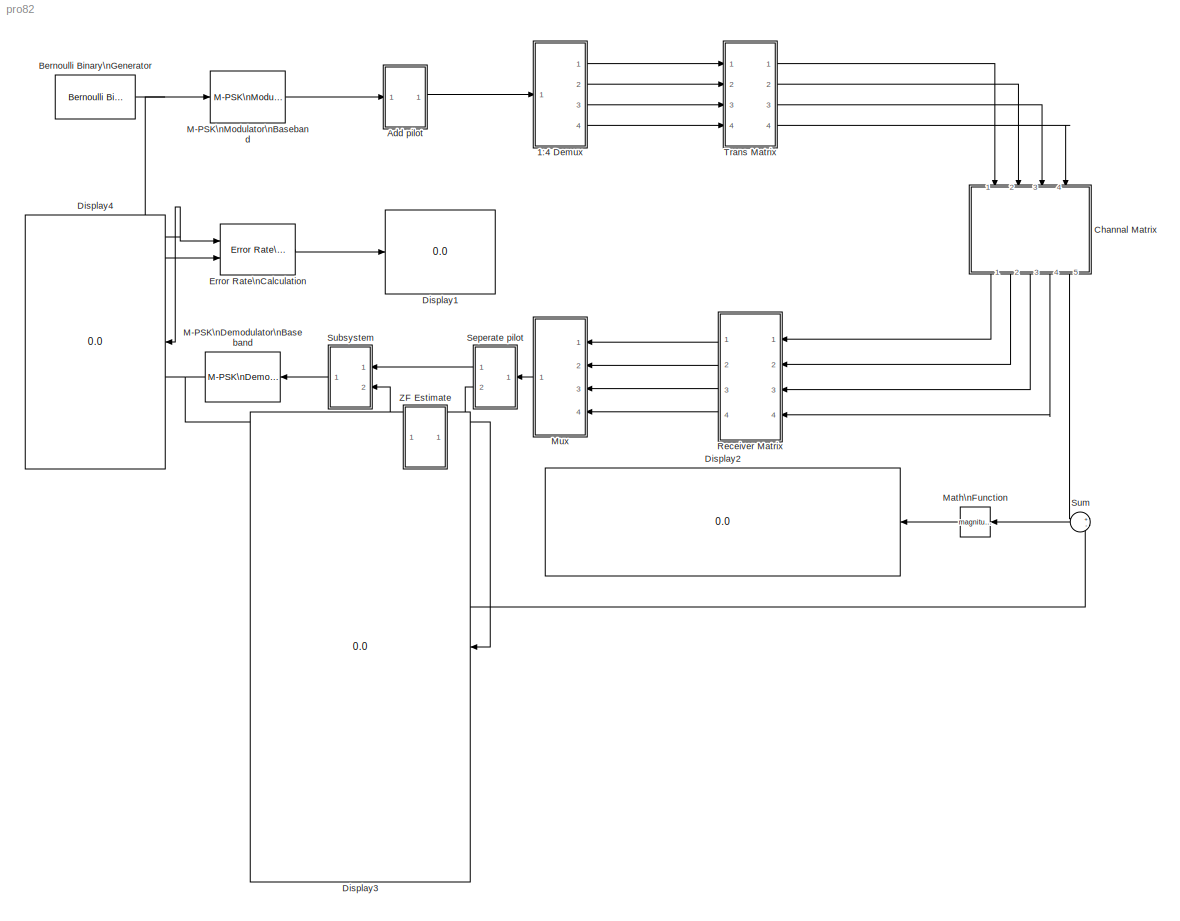
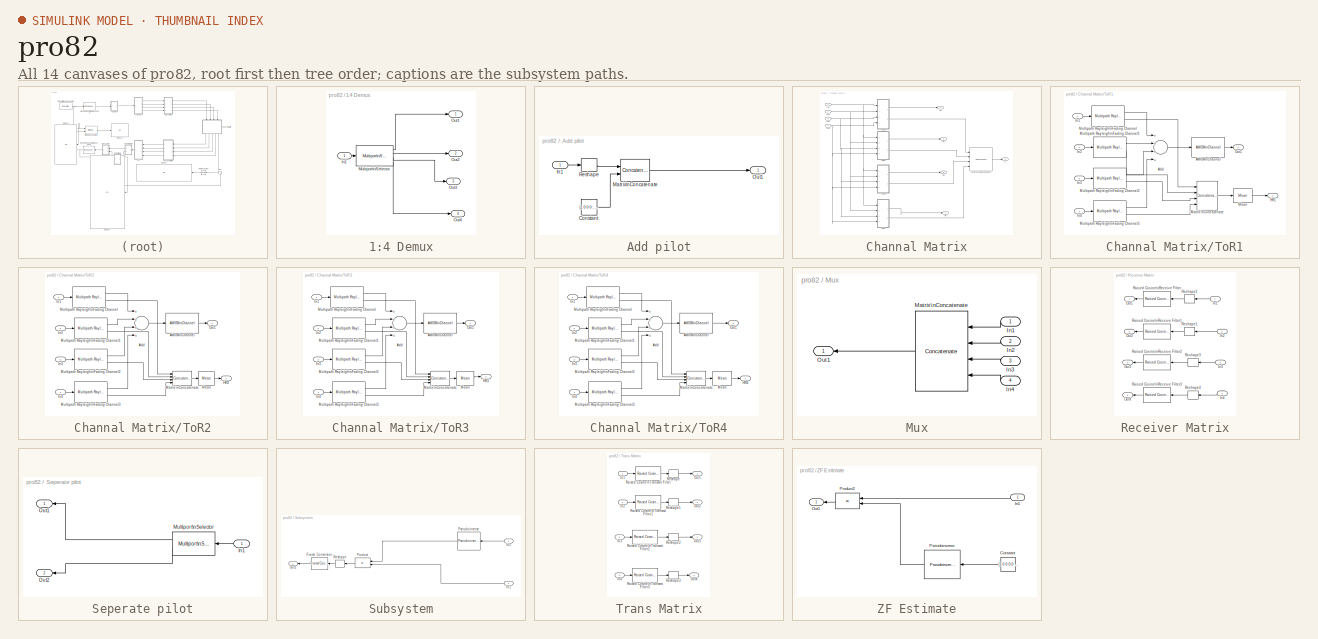
[diagram: thumbnail index - all 14 canvases of the model, root first then tree order]
MODEL pro82
KIND model
BLOCK [SubSystem] 1:4 Demux
  FunctionWithSeparateData = off
  MaskHideContents = off
  MinAlgLoopOccurrences = off
  Opaque = off
  Ports = [1, 4]
  PropExecContextOutsideSubsystem = off
  RTWSystemCode = Auto
  RequestExecContextInheritance = off
  SID = 1
BLOCK [Inport] 1:4 Demux/In1
  IconDisplay = Port number
  SID = 2
BLOCK [Reference] 1:4 Demux/Multiport\nSelector  REF=dspindex/Multiport\nSelector
  Ports = [1, 4]
  SID = 3
  SourceBlock = dspindex/Multiport\nSelector
  SourceType = Multiport Selector
  idxCellArray = { 1, 2, 3, 4 }
  idxErrMode = Clip Index
  rowsOrCols = Rows
BLOCK [Outport] 1:4 Demux/Out1
  IconDisplay = Port number
  SID = 4
BLOCK [Outport] 1:4 Demux/Out2
  IconDisplay = Port number
  Port = 2
  SID = 5
BLOCK [Outport] 1:4 Demux/Out3
  IconDisplay = Port number
  Port = 3
  SID = 6
BLOCK [Outport] 1:4 Demux/Out4
  IconDisplay = Port number
  Port = 4
  SID = 7
BLOCK [SubSystem] Add pilot
  FunctionWithSeparateData = off
  MaskHideContents = off
  MinAlgLoopOccurrences = off
  Opaque = off
  Ports = [1, 1]
  PropExecContextOutsideSubsystem = off
  RTWSystemCode = Auto
  RequestExecContextInheritance = off
  SID = 8
BLOCK [Constant] Add pilot/Constant
  OutDataType = fixdt(1, 16)
  OutScaling = 2^0
  SID = 10
  SampleTime = 1e-4
  Value = [1 0 0 0 ; 0 1 0 0;0 0 1 0; 0 0 0 1]
BLOCK [Inport] Add pilot/In1
  IconDisplay = Port number
  SID = 9
BLOCK [Concatenate] Add pilot/Matrix\nConcatenate
  ConcatenateDimension = 2
  Mode = Multidimensional array
  Ports = [2, 1]
  SID = 11
BLOCK [Outport] Add pilot/Out1
  IconDisplay = Port number
  SID = 13
BLOCK [Reshape] Add pilot/Reshape
  OutputDimensionality = Customize
  OutputDimensions = [4,96]
  Ports = [1, 1]
  SID = 12
BLOCK [Reference] Bernoulli Binary\nGenerator  REF=commrandsrc2/Bernoulli Binary\nGenerator
  DialogController = commDDGCreate
  DialogControllerArgs = DataTag0
  FunctionWithSeparateData = off
  P = 0.5
  Ports = [0, 1]
  RTWMemSecDataConstants = Inherit from model
  RTWMemSecDataInternal = Inherit from model
  RTWMemSecDataParameters = Inherit from model
  RTWMemSecFuncExecute = Inherit from model
  RTWMemSecFuncInitTerm = Inherit from model
  SID = 14
  ShowPortLabels = FromPortIcon
  SourceBlock = commrandsrc2/Bernoulli Binary\nGenerator
  SourceType = Bernoulli Binary Generator
  SystemSampleTime = -1
  Ts = 1e-4/(4*4*96)
  frameBased = on
  orient = off
  outDataType = boolean
  sampPerFrame = 4*4*96
  seed = 61
BLOCK [SubSystem] Channal Matrix
  FunctionWithSeparateData = off
  MaskHideContents = off
  MinAlgLoopOccurrences = off
  Opaque = off
  Ports = [4, 5]
  PropExecContextOutsideSubsystem = off
  RTWSystemCode = Auto
  RequestExecContextInheritance = off
  SID = 15
BLOCK [Outport] Channal Matrix/H
  IconDisplay = Port number
  Port = 5
  SID = 85
BLOCK [Inport] Channal Matrix/In1
  IconDisplay = Port number
  SID = 16
BLOCK [Inport] Channal Matrix/In2
  IconDisplay = Port number
  Port = 2
  SID = 17
BLOCK [Inport] Channal Matrix/In3
  IconDisplay = Port number
  Port = 3
  SID = 18
BLOCK [Inport] Channal Matrix/In4
  IconDisplay = Port number
  Port = 4
  SID = 19
BLOCK [Concatenate] Channal Matrix/Matrix\nConcatenate
  Mode = Multidimensional array
  NumInputs = 4
  Ports = [4, 1]
  SID = 20
BLOCK [Outport] Channal Matrix/R1
  IconDisplay = Port number
  SID = 81
BLOCK [Outport] Channal Matrix/R2
  IconDisplay = Port number
  Port = 2
  SID = 82
BLOCK [Outport] Channal Matrix/R3
  IconDisplay = Port number
  Port = 3
  SID = 83
BLOCK [Outport] Channal Matrix/R4
  IconDisplay = Port number
  Port = 4
  SID = 84
BLOCK [SubSystem] Channal Matrix/ToR1
  FunctionWithSeparateData = off
  MaskHideContents = off
  MinAlgLoopOccurrences = off
  Opaque = off
  Ports = [4, 2]
  PropExecContextOutsideSubsystem = off
  RTWSystemCode = Auto
  RequestExecContextInheritance = off
  SID = 21
BLOCK [Reference] Channal Matrix/ToR1/AWGN\nChannel  REF=commchan3/AWGN\nChannel
  EbNodB = 10
  EsNodB = 10
  FunctionWithSeparateData = off
  Ports = [1, 1]
  Ps = 0.25/8
  RTWMemSecDataConstants = Inherit from model
  RTWMemSecDataInternal = Inherit from model
  RTWMemSecDataParameters = Inherit from model
  RTWMemSecFuncExecute = Inherit from model
  RTWMemSecFuncInitTerm = Inherit from model
  SID = 26
  SNRdB = 10
  ShowPortLabels = FromPortIcon
  SourceBlock = commchan3/AWGN\nChannel
  SourceType = AWGN Channel
  SystemSampleTime = -1
  Tsym = 1e-6
  bitsPerSym = 4
  noiseMode = Signal to noise ratio  (SNR)
  seed = 73
  variance = 1
BLOCK [Sum] Channal Matrix/ToR1/Add
  InputSameDT = off
  Inputs = ++++
  OutDataType = fixdt(1, 16)
  OutDataTypeMode = Inherit via internal rule
  OutDataTypeStr = Inherit: Inherit via internal rule
  OutScaling = 2^-10
  Ports = [4, 1]
  SID = 27
  SaturateOnIntegerOverflow = off
BLOCK [Outport] Channal Matrix/ToR1/HR1
  IconDisplay = Port number
  Port = 2
  SID = 35
BLOCK [Inport] Channal Matrix/ToR1/In1
  IconDisplay = Port number
  SID = 22
BLOCK [Inport] Channal Matrix/ToR1/In2
  IconDisplay = Port number
  Port = 2
  SID = 23
BLOCK [Inport] Channal Matrix/ToR1/In3
  IconDisplay = Port number
  Port = 3
  SID = 24
BLOCK [Inport] Channal Matrix/ToR1/In4
  IconDisplay = Port number
  Port = 4
  SID = 25
BLOCK [Concatenate] Channal Matrix/ToR1/Matrix\nConcatenate
  ConcatenateDimension = 2
  Mode = Multidimensional array
  NumInputs = 4
  Ports = [4, 1]
  SID = 28
BLOCK [Reference] Channal Matrix/ToR1/Mean  REF=dspstat3/Mean
  DialogController = dspDDGCreate
  DialogControllerArgs = DataTag1
  LockScale = off
  Ports = [1, 1]
  SID = 29
  SourceBlock = dspstat3/Mean
  SourceType = Mean
  accumDataTypeStr = Inherit: Same as input
  accumFracLength = 30
  accumLastDataTypeStr = Inherit: Same as input
  accumMode = Same as input
  accumWordLength = 32
  additionalParams = off
  allowOverrides = on
  dimension = 1
  directionMode = Each column
  outputDataTypeStr = Inherit: Same as accumulator
  outputFracLength = 30
  outputLastDataTypeStr = Inherit: Same as accumulator
  outputMax = []
  outputMin = []
  outputMode = Same as accumulator
  outputWordLength = 32
  overflowMode = off
  reset_popup = None
  roiEnable = off
  roiFlag = off
  roiOutput = Individual statistics for each ROI
  roiPortion = Entire ROI
  roiType = Rectangles
  roundingMode = Floor
  run = off
  treatSBRowAsCol = on
BLOCK [Reference] Channal Matrix/ToR1/Multipath Rayleigh\nFading Channel  REF=commchan3/Multipath Rayleigh\nFading Channel
  FunctionWithSeparateData = off
  Ports = [1, 2]
  RTWMemSecDataConstants = Inherit from model
  RTWMemSecDataInternal = Inherit from model
  RTWMemSecDataParameters = Inherit from model
  RTWMemSecFuncExecute = Inherit from model
  RTWMemSecFuncInitTerm = Inherit from model
  SID = 30
  ShowPortLabels = FromPortIcon
  SourceBlock = commchan3/Multipath Rayleigh\nFading Channel
  SourceType = Multipath Rayleigh Fading Channel
  SystemSampleTime = -1
  avgPathGaindB = [0]
  centerFreqGaussian1 = 0.0
  centerFreqGaussian2 = 0.0
  coeffBell = 9
  coeffRounded = [1 -1.72 0.785]
  dopplerSpectrum = doppler.jakes
  enableProbe = 0
  freqMinMaxAJakes = [0 1]
  freqMinMaxRJakes = [0 1]
  gainGaussian1 = 0.5
  gainGaussian2 = 0.5
  maxDopplerShift = 40
  normalizePathGains = on
  openVisAtStart = off
  outDelay = off
  outPathGains = on
  pathDelays = [0]
  seed = 12345
  sigmaGaussian = 1/sqrt(2)
  sigmaGaussian1 = 1/sqrt(2)
  sigmaGaussian2 = 1/sqrt(2)
  spectrumType = Jakes
BLOCK [Reference] Channal Matrix/ToR1/Multipath Rayleigh\nFading Channel1  REF=commchan3/Multipath Rayleigh\nFading Channel
  FunctionWithSeparateData = off
  Ports = [1, 2]
  RTWMemSecDataConstants = Inherit from model
  RTWMemSecDataInternal = Inherit from model
  RTWMemSecDataParameters = Inherit from model
  RTWMemSecFuncExecute = Inherit from model
  RTWMemSecFuncInitTerm = Inherit from model
  SID = 31
  ShowPortLabels = FromPortIcon
  SourceBlock = commchan3/Multipath Rayleigh\nFading Channel
  SourceType = Multipath Rayleigh Fading Channel
  SystemSampleTime = -1
  avgPathGaindB = [0]
  centerFreqGaussian1 = 0.0
  centerFreqGaussian2 = 0.0
  coeffBell = 9
  coeffRounded = [1 -1.72 0.785]
  dopplerSpectrum = doppler.jakes
  enableProbe = 0
  freqMinMaxAJakes = [0 1]
  freqMinMaxRJakes = [0 1]
  gainGaussian1 = 0.5
  gainGaussian2 = 0.5
  maxDopplerShift = 40
  normalizePathGains = on
  openVisAtStart = off
  outDelay = off
  outPathGains = on
  pathDelays = [0]
  seed = 15678
  sigmaGaussian = 1/sqrt(2)
  sigmaGaussian1 = 1/sqrt(2)
  sigmaGaussian2 = 1/sqrt(2)
  spectrumType = Jakes
BLOCK [Reference] Channal Matrix/ToR1/Multipath Rayleigh\nFading Channel2  REF=commchan3/Multipath Rayleigh\nFading Channel
  FunctionWithSeparateData = off
  Ports = [1, 2]
  RTWMemSecDataConstants = Inherit from model
  RTWMemSecDataInternal = Inherit from model
  RTWMemSecDataParameters = Inherit from model
  RTWMemSecFuncExecute = Inherit from model
  RTWMemSecFuncInitTerm = Inherit from model
  SID = 32
  ShowPortLabels = FromPortIcon
  SourceBlock = commchan3/Multipath Rayleigh\nFading Channel
  SourceType = Multipath Rayleigh Fading Channel
  SystemSampleTime = -1
  avgPathGaindB = [0]
  centerFreqGaussian1 = 0.0
  centerFreqGaussian2 = 0.0
  coeffBell = 9
  coeffRounded = [1 -1.72 0.785]
  dopplerSpectrum = doppler.jakes
  enableProbe = 0
  freqMinMaxAJakes = [0 1]
  freqMinMaxRJakes = [0 1]
  gainGaussian1 = 0.5
  gainGaussian2 = 0.5
  maxDopplerShift = 40
  normalizePathGains = on
  openVisAtStart = off
  outDelay = off
  outPathGains = on
  pathDelays = [0]
  seed = 13987
  sigmaGaussian = 1/sqrt(2)
  sigmaGaussian1 = 1/sqrt(2)
  sigmaGaussian2 = 1/sqrt(2)
  spectrumType = Jakes
BLOCK [Reference] Channal Matrix/ToR1/Multipath Rayleigh\nFading Channel3  REF=commchan3/Multipath Rayleigh\nFading Channel
  FunctionWithSeparateData = off
  Ports = [1, 2]
  RTWMemSecDataConstants = Inherit from model
  RTWMemSecDataInternal = Inherit from model
  RTWMemSecDataParameters = Inherit from model
  RTWMemSecFuncExecute = Inherit from model
  RTWMemSecFuncInitTerm = Inherit from model
  SID = 33
  ShowPortLabels = FromPortIcon
  SourceBlock = commchan3/Multipath Rayleigh\nFading Channel
  SourceType = Multipath Rayleigh Fading Channel
  SystemSampleTime = -1
  avgPathGaindB = [0]
  centerFreqGaussian1 = 0.0
  centerFreqGaussian2 = 0.0
  coeffBell = 9
  coeffRounded = [1 -1.72 0.785]
  dopplerSpectrum = doppler.jakes
  enableProbe = 0
  freqMinMaxAJakes = [0 1]
  freqMinMaxRJakes = [0 1]
  gainGaussian1 = 0.5
  gainGaussian2 = 0.5
  maxDopplerShift = 40
  normalizePathGains = on
  openVisAtStart = off
  outDelay = off
  outPathGains = on
  pathDelays = [0]
  seed = 19876
  sigmaGaussian = 1/sqrt(2)
  sigmaGaussian1 = 1/sqrt(2)
  sigmaGaussian2 = 1/sqrt(2)
  spectrumType = Jakes
BLOCK [Outport] Channal Matrix/ToR1/Out1
  IconDisplay = Port number
  SID = 34
BLOCK [SubSystem] Channal Matrix/ToR2
  FunctionWithSeparateData = off
  MaskHideContents = off
  MinAlgLoopOccurrences = off
  Opaque = off
  Ports = [4, 2]
  PropExecContextOutsideSubsystem = off
  RTWSystemCode = Auto
  RequestExecContextInheritance = off
  SID = 36
BLOCK [Reference] Channal Matrix/ToR2/AWGN\nChannel  REF=commchan3/AWGN\nChannel
  EbNodB = 10
  EsNodB = 10
  FunctionWithSeparateData = off
  Ports = [1, 1]
  Ps = 0.25/8
  RTWMemSecDataConstants = Inherit from model
  RTWMemSecDataInternal = Inherit from model
  RTWMemSecDataParameters = Inherit from model
  RTWMemSecFuncExecute = Inherit from model
  RTWMemSecFuncInitTerm = Inherit from model
  SID = 41
  SNRdB = 10
  ShowPortLabels = FromPortIcon
  SourceBlock = commchan3/AWGN\nChannel
  SourceType = AWGN Channel
  SystemSampleTime = -1
  Tsym = 1e-6
  bitsPerSym = 4
  noiseMode = Signal to noise ratio  (SNR)
  seed = 210
  variance = 1
BLOCK [Sum] Channal Matrix/ToR2/Add
  InputSameDT = off
  Inputs = ++++
  OutDataType = fixdt(1, 16)
  OutDataTypeMode = Inherit via internal rule
  OutDataTypeStr = Inherit: Inherit via internal rule
  OutScaling = 2^-10
  Ports = [4, 1]
  SID = 42
  SaturateOnIntegerOverflow = off
BLOCK [Outport] Channal Matrix/ToR2/HR2
  IconDisplay = Port number
  Port = 2
  SID = 50
BLOCK [Inport] Channal Matrix/ToR2/In1
  IconDisplay = Port number
  SID = 37
BLOCK [Inport] Channal Matrix/ToR2/In2
  IconDisplay = Port number
  Port = 2
  SID = 38
BLOCK [Inport] Channal Matrix/ToR2/In3
  IconDisplay = Port number
  Port = 3
  SID = 39
BLOCK [Inport] Channal Matrix/ToR2/In4
  IconDisplay = Port number
  Port = 4
  SID = 40
BLOCK [Concatenate] Channal Matrix/ToR2/Matrix\nConcatenate
  ConcatenateDimension = 2
  Mode = Multidimensional array
  NumInputs = 4
  Ports = [4, 1]
  SID = 43
BLOCK [Reference] Channal Matrix/ToR2/Mean  REF=dspstat3/Mean
  DialogController = dspDDGCreate
  DialogControllerArgs = DataTag2
  LockScale = off
  Ports = [1, 1]
  SID = 44
  SourceBlock = dspstat3/Mean
  SourceType = Mean
  accumDataTypeStr = Inherit: Same as input
  accumFracLength = 30
  accumLastDataTypeStr = Inherit: Same as input
  accumMode = Same as input
  accumWordLength = 32
  additionalParams = off
  allowOverrides = on
  dimension = 1
  directionMode = Each column
  outputDataTypeStr = Inherit: Same as accumulator
  outputFracLength = 30
  outputLastDataTypeStr = Inherit: Same as accumulator
  outputMax = []
  outputMin = []
  outputMode = Same as accumulator
  outputWordLength = 32
  overflowMode = off
  reset_popup = None
  roiEnable = off
  roiFlag = off
  roiOutput = Individual statistics for each ROI
  roiPortion = Entire ROI
  roiType = Rectangles
  roundingMode = Floor
  run = off
  treatSBRowAsCol = on
BLOCK [Reference] Channal Matrix/ToR2/Multipath Rayleigh\nFading Channel  REF=commchan3/Multipath Rayleigh\nFading Channel
  FunctionWithSeparateData = off
  Ports = [1, 2]
  RTWMemSecDataConstants = Inherit from model
  RTWMemSecDataInternal = Inherit from model
  RTWMemSecDataParameters = Inherit from model
  RTWMemSecFuncExecute = Inherit from model
  RTWMemSecFuncInitTerm = Inherit from model
  SID = 45
  ShowPortLabels = FromPortIcon
  SourceBlock = commchan3/Multipath Rayleigh\nFading Channel
  SourceType = Multipath Rayleigh Fading Channel
  SystemSampleTime = -1
  avgPathGaindB = [0]
  centerFreqGaussian1 = 0.0
  centerFreqGaussian2 = 0.0
  coeffBell = 9
  coeffRounded = [1 -1.72 0.785]
  dopplerSpectrum = doppler.jakes
  enableProbe = 0
  freqMinMaxAJakes = [0 1]
  freqMinMaxRJakes = [0 1]
  gainGaussian1 = 0.5
  gainGaussian2 = 0.5
  maxDopplerShift = 40
  normalizePathGains = on
  openVisAtStart = off
  outDelay = off
  outPathGains = on
  pathDelays = [0]
  seed = 2
  sigmaGaussian = 1/sqrt(2)
  sigmaGaussian1 = 1/sqrt(2)
  sigmaGaussian2 = 1/sqrt(2)
  spectrumType = Jakes
BLOCK [Reference] Channal Matrix/ToR2/Multipath Rayleigh\nFading Channel1  REF=commchan3/Multipath Rayleigh\nFading Channel
  FunctionWithSeparateData = off
  Ports = [1, 2]
  RTWMemSecDataConstants = Inherit from model
  RTWMemSecDataInternal = Inherit from model
  RTWMemSecDataParameters = Inherit from model
  RTWMemSecFuncExecute = Inherit from model
  RTWMemSecFuncInitTerm = Inherit from model
  SID = 46
  ShowPortLabels = FromPortIcon
  SourceBlock = commchan3/Multipath Rayleigh\nFading Channel
  SourceType = Multipath Rayleigh Fading Channel
  SystemSampleTime = -1
  avgPathGaindB = [0]
  centerFreqGaussian1 = 0.0
  centerFreqGaussian2 = 0.0
  coeffBell = 9
  coeffRounded = [1 -1.72 0.785]
  dopplerSpectrum = doppler.jakes
  enableProbe = 0
  freqMinMaxAJakes = [0 1]
  freqMinMaxRJakes = [0 1]
  gainGaussian1 = 0.5
  gainGaussian2 = 0.5
  maxDopplerShift = 40
  normalizePathGains = on
  openVisAtStart = off
  outDelay = off
  outPathGains = on
  pathDelays = [0]
  seed = 23456
  sigmaGaussian = 1/sqrt(2)
  sigmaGaussian1 = 1/sqrt(2)
  sigmaGaussian2 = 1/sqrt(2)
  spectrumType = Jakes
BLOCK [Reference] Channal Matrix/ToR2/Multipath Rayleigh\nFading Channel2  REF=commchan3/Multipath Rayleigh\nFading Channel
  FunctionWithSeparateData = off
  Ports = [1, 2]
  RTWMemSecDataConstants = Inherit from model
  RTWMemSecDataInternal = Inherit from model
  RTWMemSecDataParameters = Inherit from model
  RTWMemSecFuncExecute = Inherit from model
  RTWMemSecFuncInitTerm = Inherit from model
  SID = 47
  ShowPortLabels = FromPortIcon
  SourceBlock = commchan3/Multipath Rayleigh\nFading Channel
  SourceType = Multipath Rayleigh Fading Channel
  SystemSampleTime = -1
  avgPathGaindB = [0]
  centerFreqGaussian1 = 0.0
  centerFreqGaussian2 = 0.0
  coeffBell = 9
  coeffRounded = [1 -1.72 0.785]
  dopplerSpectrum = doppler.jakes
  enableProbe = 0
  freqMinMaxAJakes = [0 1]
  freqMinMaxRJakes = [0 1]
  gainGaussian1 = 0.5
  gainGaussian2 = 0.5
  maxDopplerShift = 40
  normalizePathGains = on
  openVisAtStart = off
  outDelay = off
  outPathGains = on
  pathDelays = [0]
  seed = 29876
  sigmaGaussian = 1/sqrt(2)
  sigmaGaussian1 = 1/sqrt(2)
  sigmaGaussian2 = 1/sqrt(2)
  spectrumType = Jakes
BLOCK [Reference] Channal Matrix/ToR2/Multipath Rayleigh\nFading Channel3  REF=commchan3/Multipath Rayleigh\nFading Channel
  FunctionWithSeparateData = off
  Ports = [1, 2]
  RTWMemSecDataConstants = Inherit from model
  RTWMemSecDataInternal = Inherit from model
  RTWMemSecDataParameters = Inherit from model
  RTWMemSecFuncExecute = Inherit from model
  RTWMemSecFuncInitTerm = Inherit from model
  SID = 48
  ShowPortLabels = FromPortIcon
  SourceBlock = commchan3/Multipath Rayleigh\nFading Channel
  SourceType = Multipath Rayleigh Fading Channel
  SystemSampleTime = -1
  avgPathGaindB = [0]
  centerFreqGaussian1 = 0.0
  centerFreqGaussian2 = 0.0
  coeffBell = 9
  coeffRounded = [1 -1.72 0.785]
  dopplerSpectrum = doppler.jakes
  enableProbe = 0
  freqMinMaxAJakes = [0 1]
  freqMinMaxRJakes = [0 1]
  gainGaussian1 = 0.5
  gainGaussian2 = 0.5
  maxDopplerShift = 40
  normalizePathGains = on
  openVisAtStart = off
  outDelay = off
  outPathGains = on
  pathDelays = [0]
  seed = 27345
  sigmaGaussian = 1/sqrt(2)
  sigmaGaussian1 = 1/sqrt(2)
  sigmaGaussian2 = 1/sqrt(2)
  spectrumType = Jakes
BLOCK [Outport] Channal Matrix/ToR2/Out1
  IconDisplay = Port number
  SID = 49
BLOCK [SubSystem] Channal Matrix/ToR3
  FunctionWithSeparateData = off
  MaskHideContents = off
  MinAlgLoopOccurrences = off
  Opaque = off
  Ports = [4, 2]
  PropExecContextOutsideSubsystem = off
  RTWSystemCode = Auto
  RequestExecContextInheritance = off
  SID = 51
BLOCK [Reference] Channal Matrix/ToR3/AWGN\nChannel  REF=commchan3/AWGN\nChannel
  EbNodB = 10
  EsNodB = 10
  FunctionWithSeparateData = off
  Ports = [1, 1]
  Ps = 0.25/8
  RTWMemSecDataConstants = Inherit from model
  RTWMemSecDataInternal = Inherit from model
  RTWMemSecDataParameters = Inherit from model
  RTWMemSecFuncExecute = Inherit from model
  RTWMemSecFuncInitTerm = Inherit from model
  SID = 56
  SNRdB = 10
  ShowPortLabels = FromPortIcon
  SourceBlock = commchan3/AWGN\nChannel
  SourceType = AWGN Channel
  SystemSampleTime = -1
  Tsym = 1e-6
  bitsPerSym = 4
  noiseMode = Signal to noise ratio  (SNR)
  seed = 310
  variance = 1
BLOCK [Sum] Channal Matrix/ToR3/Add
  InputSameDT = off
  Inputs = ++++
  OutDataType = fixdt(1, 16)
  OutDataTypeMode = Inherit via internal rule
  OutDataTypeStr = Inherit: Inherit via internal rule
  OutScaling = 2^-10
  Ports = [4, 1]
  SID = 57
  SaturateOnIntegerOverflow = off
BLOCK [Outport] Channal Matrix/ToR3/HR3
  IconDisplay = Port number
  Port = 2
  SID = 65
BLOCK [Inport] Channal Matrix/ToR3/In1
  IconDisplay = Port number
  SID = 52
BLOCK [Inport] Channal Matrix/ToR3/In2
  IconDisplay = Port number
  Port = 2
  SID = 53
BLOCK [Inport] Channal Matrix/ToR3/In3
  IconDisplay = Port number
  Port = 3
  SID = 54
BLOCK [Inport] Channal Matrix/ToR3/In4
  IconDisplay = Port number
  Port = 4
  SID = 55
BLOCK [Concatenate] Channal Matrix/ToR3/Matrix\nConcatenate
  ConcatenateDimension = 2
  Mode = Multidimensional array
  NumInputs = 4
  Ports = [4, 1]
  SID = 58
BLOCK [Reference] Channal Matrix/ToR3/Mean  REF=dspstat3/Mean
  DialogController = dspDDGCreate
  DialogControllerArgs = DataTag3
  LockScale = off
  Ports = [1, 1]
  SID = 59
  SourceBlock = dspstat3/Mean
  SourceType = Mean
  accumDataTypeStr = Inherit: Same as input
  accumFracLength = 30
  accumLastDataTypeStr = Inherit: Same as input
  accumMode = Same as input
  accumWordLength = 32
  additionalParams = off
  allowOverrides = on
  dimension = 1
  directionMode = Each column
  outputDataTypeStr = Inherit: Same as accumulator
  outputFracLength = 30
  outputLastDataTypeStr = Inherit: Same as accumulator
  outputMax = []
  outputMin = []
  outputMode = Same as accumulator
  outputWordLength = 32
  overflowMode = off
  reset_popup = None
  roiEnable = off
  roiFlag = off
  roiOutput = Individual statistics for each ROI
  roiPortion = Entire ROI
  roiType = Rectangles
  roundingMode = Floor
  run = off
  treatSBRowAsCol = on
BLOCK [Reference] Channal Matrix/ToR3/Multipath Rayleigh\nFading Channel  REF=commchan3/Multipath Rayleigh\nFading Channel
  FunctionWithSeparateData = off
  Ports = [1, 2]
  RTWMemSecDataConstants = Inherit from model
  RTWMemSecDataInternal = Inherit from model
  RTWMemSecDataParameters = Inherit from model
  RTWMemSecFuncExecute = Inherit from model
  RTWMemSecFuncInitTerm = Inherit from model
  SID = 60
  ShowPortLabels = FromPortIcon
  SourceBlock = commchan3/Multipath Rayleigh\nFading Channel
  SourceType = Multipath Rayleigh Fading Channel
  SystemSampleTime = -1
  avgPathGaindB = [0]
  centerFreqGaussian1 = 0.0
  centerFreqGaussian2 = 0.0
  coeffBell = 9
  coeffRounded = [1 -1.72 0.785]
  dopplerSpectrum = doppler.jakes
  enableProbe = 0
  freqMinMaxAJakes = [0 1]
  freqMinMaxRJakes = [0 1]
  gainGaussian1 = 0.5
  gainGaussian2 = 0.5
  maxDopplerShift = 40
  normalizePathGains = on
  openVisAtStart = off
  outDelay = off
  outPathGains = on
  pathDelays = [0]
  seed = 34567
  sigmaGaussian = 1/sqrt(2)
  sigmaGaussian1 = 1/sqrt(2)
  sigmaGaussian2 = 1/sqrt(2)
  spectrumType = Jakes
BLOCK [Reference] Channal Matrix/ToR3/Multipath Rayleigh\nFading Channel1  REF=commchan3/Multipath Rayleigh\nFading Channel
  FunctionWithSeparateData = off
  Ports = [1, 2]
  RTWMemSecDataConstants = Inherit from model
  RTWMemSecDataInternal = Inherit from model
  RTWMemSecDataParameters = Inherit from model
  RTWMemSecFuncExecute = Inherit from model
  RTWMemSecFuncInitTerm = Inherit from model
  SID = 61
  ShowPortLabels = FromPortIcon
  SourceBlock = commchan3/Multipath Rayleigh\nFading Channel
  SourceType = Multipath Rayleigh Fading Channel
  SystemSampleTime = -1
  avgPathGaindB = [0]
  centerFreqGaussian1 = 0.0
  centerFreqGaussian2 = 0.0
  coeffBell = 9
  coeffRounded = [1 -1.72 0.785]
  dopplerSpectrum = doppler.jakes
  enableProbe = 0
  freqMinMaxAJakes = [0 1]
  freqMinMaxRJakes = [0 1]
  gainGaussian1 = 0.5
  gainGaussian2 = 0.5
  maxDopplerShift = 40
  normalizePathGains = on
  openVisAtStart = off
  outDelay = off
  outPathGains = on
  pathDelays = [0]
  seed = 39876
  sigmaGaussian = 1/sqrt(2)
  sigmaGaussian1 = 1/sqrt(2)
  sigmaGaussian2 = 1/sqrt(2)
  spectrumType = Jakes
BLOCK [Reference] Channal Matrix/ToR3/Multipath Rayleigh\nFading Channel2  REF=commchan3/Multipath Rayleigh\nFading Channel
  FunctionWithSeparateData = off
  Ports = [1, 2]
  RTWMemSecDataConstants = Inherit from model
  RTWMemSecDataInternal = Inherit from model
  RTWMemSecDataParameters = Inherit from model
  RTWMemSecFuncExecute = Inherit from model
  RTWMemSecFuncInitTerm = Inherit from model
  SID = 62
  ShowPortLabels = FromPortIcon
  SourceBlock = commchan3/Multipath Rayleigh\nFading Channel
  SourceType = Multipath Rayleigh Fading Channel
  SystemSampleTime = -1
  avgPathGaindB = [0]
  centerFreqGaussian1 = 0.0
  centerFreqGaussian2 = 0.0
  coeffBell = 9
  coeffRounded = [1 -1.72 0.785]
  dopplerSpectrum = doppler.jakes
  enableProbe = 0
  freqMinMaxAJakes = [0 1]
  freqMinMaxRJakes = [0 1]
  gainGaussian1 = 0.5
  gainGaussian2 = 0.5
  maxDopplerShift = 40
  normalizePathGains = on
  openVisAtStart = off
  outDelay = off
  outPathGains = on
  pathDelays = [0]
  seed = 36512
  sigmaGaussian = 1/sqrt(2)
  sigmaGaussian1 = 1/sqrt(2)
  sigmaGaussian2 = 1/sqrt(2)
  spectrumType = Jakes
BLOCK [Reference] Channal Matrix/ToR3/Multipath Rayleigh\nFading Channel3  REF=commchan3/Multipath Rayleigh\nFading Channel
  FunctionWithSeparateData = off
  Ports = [1, 2]
  RTWMemSecDataConstants = Inherit from model
  RTWMemSecDataInternal = Inherit from model
  RTWMemSecDataParameters = Inherit from model
  RTWMemSecFuncExecute = Inherit from model
  RTWMemSecFuncInitTerm = Inherit from model
  SID = 63
  ShowPortLabels = FromPortIcon
  SourceBlock = commchan3/Multipath Rayleigh\nFading Channel
  SourceType = Multipath Rayleigh Fading Channel
  SystemSampleTime = -1
  avgPathGaindB = [0]
  centerFreqGaussian1 = 0.0
  centerFreqGaussian2 = 0.0
  coeffBell = 9
  coeffRounded = [1 -1.72 0.785]
  dopplerSpectrum = doppler.jakes
  enableProbe = 0
  freqMinMaxAJakes = [0 1]
  freqMinMaxRJakes = [0 1]
  gainGaussian1 = 0.5
  gainGaussian2 = 0.5
  maxDopplerShift = 40
  normalizePathGains = on
  openVisAtStart = off
  outDelay = off
  outPathGains = on
  pathDelays = [0]
  seed = 31111
  sigmaGaussian = 1/sqrt(2)
  sigmaGaussian1 = 1/sqrt(2)
  sigmaGaussian2 = 1/sqrt(2)
  spectrumType = Jakes
BLOCK [Outport] Channal Matrix/ToR3/Out1
  IconDisplay = Port number
  SID = 64
BLOCK [SubSystem] Channal Matrix/ToR4
  FunctionWithSeparateData = off
  MaskHideContents = off
  MinAlgLoopOccurrences = off
  Opaque = off
  Ports = [4, 2]
  PropExecContextOutsideSubsystem = off
  RTWSystemCode = Auto
  RequestExecContextInheritance = off
  SID = 66
BLOCK [Reference] Channal Matrix/ToR4/AWGN\nChannel  REF=commchan3/AWGN\nChannel
  EbNodB = 10
  EsNodB = 10
  FunctionWithSeparateData = off
  Ports = [1, 1]
  Ps = 0.25/8
  RTWMemSecDataConstants = Inherit from model
  RTWMemSecDataInternal = Inherit from model
  RTWMemSecDataParameters = Inherit from model
  RTWMemSecFuncExecute = Inherit from model
  RTWMemSecFuncInitTerm = Inherit from model
  SID = 71
  SNRdB = 10
  ShowPortLabels = FromPortIcon
  SourceBlock = commchan3/AWGN\nChannel
  SourceType = AWGN Channel
  SystemSampleTime = -1
  Tsym = 1e-6
  bitsPerSym = 4
  noiseMode = Signal to noise ratio  (SNR)
  seed = 310
  variance = 1
BLOCK [Sum] Channal Matrix/ToR4/Add
  InputSameDT = off
  Inputs = ++++
  OutDataType = fixdt(1, 16)
  OutDataTypeMode = Inherit via internal rule
  OutDataTypeStr = Inherit: Inherit via internal rule
  OutScaling = 2^-10
  Ports = [4, 1]
  SID = 72
  SaturateOnIntegerOverflow = off
BLOCK [Outport] Channal Matrix/ToR4/HR4
  IconDisplay = Port number
  Port = 2
  SID = 80
BLOCK [Inport] Channal Matrix/ToR4/In1
  IconDisplay = Port number
  SID = 67
BLOCK [Inport] Channal Matrix/ToR4/In2
  IconDisplay = Port number
  Port = 2
  SID = 68
BLOCK [Inport] Channal Matrix/ToR4/In3
  IconDisplay = Port number
  Port = 3
  SID = 69
BLOCK [Inport] Channal Matrix/ToR4/In4
  IconDisplay = Port number
  Port = 4
  SID = 70
BLOCK [Concatenate] Channal Matrix/ToR4/Matrix\nConcatenate
  ConcatenateDimension = 2
  Mode = Multidimensional array
  NumInputs = 4
  Ports = [4, 1]
  SID = 73
BLOCK [Reference] Channal Matrix/ToR4/Mean  REF=dspstat3/Mean
  DialogController = dspDDGCreate
  DialogControllerArgs = DataTag4
  LockScale = off
  Ports = [1, 1]
  SID = 74
  SourceBlock = dspstat3/Mean
  SourceType = Mean
  accumDataTypeStr = Inherit: Same as input
  accumFracLength = 30
  accumLastDataTypeStr = Inherit: Same as input
  accumMode = Same as input
  accumWordLength = 32
  additionalParams = off
  allowOverrides = on
  dimension = 1
  directionMode = Each column
  outputDataTypeStr = Inherit: Same as accumulator
  outputFracLength = 30
  outputLastDataTypeStr = Inherit: Same as accumulator
  outputMax = []
  outputMin = []
  outputMode = Same as accumulator
  outputWordLength = 32
  overflowMode = off
  reset_popup = None
  roiEnable = off
  roiFlag = off
  roiOutput = Individual statistics for each ROI
  roiPortion = Entire ROI
  roiType = Rectangles
  roundingMode = Floor
  run = off
  treatSBRowAsCol = on
BLOCK [Reference] Channal Matrix/ToR4/Multipath Rayleigh\nFading Channel  REF=commchan3/Multipath Rayleigh\nFading Channel
  FunctionWithSeparateData = off
  Ports = [1, 2]
  RTWMemSecDataConstants = Inherit from model
  RTWMemSecDataInternal = Inherit from model
  RTWMemSecDataParameters = Inherit from model
  RTWMemSecFuncExecute = Inherit from model
  RTWMemSecFuncInitTerm = Inherit from model
  SID = 75
  ShowPortLabels = FromPortIcon
  SourceBlock = commchan3/Multipath Rayleigh\nFading Channel
  SourceType = Multipath Rayleigh Fading Channel
  SystemSampleTime = -1
  avgPathGaindB = [0]
  centerFreqGaussian1 = 0.0
  centerFreqGaussian2 = 0.0
  coeffBell = 9
  coeffRounded = [1 -1.72 0.785]
  dopplerSpectrum = doppler.jakes
  enableProbe = 0
  freqMinMaxAJakes = [0 1]
  freqMinMaxRJakes = [0 1]
  gainGaussian1 = 0.5
  gainGaussian2 = 0.5
  maxDopplerShift = 40
  normalizePathGains = on
  openVisAtStart = off
  outDelay = off
  outPathGains = on
  pathDelays = [0]
  seed = 55555
  sigmaGaussian = 1/sqrt(2)
  sigmaGaussian1 = 1/sqrt(2)
  sigmaGaussian2 = 1/sqrt(2)
  spectrumType = Jakes
BLOCK [Reference] Channal Matrix/ToR4/Multipath Rayleigh\nFading Channel1  REF=commchan3/Multipath Rayleigh\nFading Channel
  FunctionWithSeparateData = off
  Ports = [1, 2]
  RTWMemSecDataConstants = Inherit from model
  RTWMemSecDataInternal = Inherit from model
  RTWMemSecDataParameters = Inherit from model
  RTWMemSecFuncExecute = Inherit from model
  RTWMemSecFuncInitTerm = Inherit from model
  SID = 76
  ShowPortLabels = FromPortIcon
  SourceBlock = commchan3/Multipath Rayleigh\nFading Channel
  SourceType = Multipath Rayleigh Fading Channel
  SystemSampleTime = -1
  avgPathGaindB = [0]
  centerFreqGaussian1 = 0.0
  centerFreqGaussian2 = 0.0
  coeffBell = 9
  coeffRounded = [1 -1.72 0.785]
  dopplerSpectrum = doppler.jakes
  enableProbe = 0
  freqMinMaxAJakes = [0 1]
  freqMinMaxRJakes = [0 1]
  gainGaussian1 = 0.5
  gainGaussian2 = 0.5
  maxDopplerShift = 40
  normalizePathGains = on
  openVisAtStart = off
  outDelay = off
  outPathGains = on
  pathDelays = [0]
  seed = 66666
  sigmaGaussian = 1/sqrt(2)
  sigmaGaussian1 = 1/sqrt(2)
  sigmaGaussian2 = 1/sqrt(2)
  spectrumType = Jakes
BLOCK [Reference] Channal Matrix/ToR4/Multipath Rayleigh\nFading Channel2  REF=commchan3/Multipath Rayleigh\nFading Channel
  FunctionWithSeparateData = off
  Ports = [1, 2]
  RTWMemSecDataConstants = Inherit from model
  RTWMemSecDataInternal = Inherit from model
  RTWMemSecDataParameters = Inherit from model
  RTWMemSecFuncExecute = Inherit from model
  RTWMemSecFuncInitTerm = Inherit from model
  SID = 77
  ShowPortLabels = FromPortIcon
  SourceBlock = commchan3/Multipath Rayleigh\nFading Channel
  SourceType = Multipath Rayleigh Fading Channel
  SystemSampleTime = -1
  avgPathGaindB = [0]
  centerFreqGaussian1 = 0.0
  centerFreqGaussian2 = 0.0
  coeffBell = 9
  coeffRounded = [1 -1.72 0.785]
  dopplerSpectrum = doppler.jakes
  enableProbe = 0
  freqMinMaxAJakes = [0 1]
  freqMinMaxRJakes = [0 1]
  gainGaussian1 = 0.5
  gainGaussian2 = 0.5
  maxDopplerShift = 40
  normalizePathGains = on
  openVisAtStart = off
  outDelay = off
  outPathGains = on
  pathDelays = [0]
  seed = 77777
  sigmaGaussian = 1/sqrt(2)
  sigmaGaussian1 = 1/sqrt(2)
  sigmaGaussian2 = 1/sqrt(2)
  spectrumType = Jakes
BLOCK [Reference] Channal Matrix/ToR4/Multipath Rayleigh\nFading Channel3  REF=commchan3/Multipath Rayleigh\nFading Channel
  FunctionWithSeparateData = off
  Ports = [1, 2]
  RTWMemSecDataConstants = Inherit from model
  RTWMemSecDataInternal = Inherit from model
  RTWMemSecDataParameters = Inherit from model
  RTWMemSecFuncExecute = Inherit from model
  RTWMemSecFuncInitTerm = Inherit from model
  SID = 78
  ShowPortLabels = FromPortIcon
  SourceBlock = commchan3/Multipath Rayleigh\nFading Channel
  SourceType = Multipath Rayleigh Fading Channel
  SystemSampleTime = -1
  avgPathGaindB = [0]
  centerFreqGaussian1 = 0.0
  centerFreqGaussian2 = 0.0
  coeffBell = 9
  coeffRounded = [1 -1.72 0.785]
  dopplerSpectrum = doppler.jakes
  enableProbe = 0
  freqMinMaxAJakes = [0 1]
  freqMinMaxRJakes = [0 1]
  gainGaussian1 = 0.5
  gainGaussian2 = 0.5
  maxDopplerShift = 40
  normalizePathGains = on
  openVisAtStart = off
  outDelay = off
  outPathGains = on
  pathDelays = [0]
  seed = 88888
  sigmaGaussian = 1/sqrt(2)
  sigmaGaussian1 = 1/sqrt(2)
  sigmaGaussian2 = 1/sqrt(2)
  spectrumType = Jakes
BLOCK [Outport] Channal Matrix/ToR4/Out1
  IconDisplay = Port number
  SID = 79
BLOCK [Display] Display1
  Decimation = 1
  Lockdown = off
  Ports = [1]
  SID = 86
BLOCK [Display] Display2
  Decimation = 1
  Lockdown = off
  Ports = [1]
  SID = 87
BLOCK [Display] Display3
  Decimation = 1
  Lockdown = off
  Ports = [1]
  SID = 156
BLOCK [Display] Display4
  Decimation = 1
  Lockdown = off
  Ports = [1]
  SID = 157
BLOCK [Reference] Error Rate\nCalculation  REF=commsink2/Error Rate\nCalculation
  N = 21
  PMode = Port
  Ports = [2, 1]
  RsMode2 = off
  SID = 88
  SourceBlock = commsink2/Error Rate\nCalculation
  SourceType = Error Rate Calculation
  WsName = ErrorVec
  cp_mode = Entire frame
  maxBits = 1e6
  numErr = 100
  st_delay = 0
  stop = off
  subframe = []
BLOCK [Reference] M-PSK\nDemodulator\nBaseband  REF=commdigbbndpm3/M-PSK\nDemodulator\nBaseband
  Dec = Gray
  DecType = Hard decision
  DialogController = commDDGCreate
  DialogControllerArgs = DataTag5
  M = 16
  Mapping = [0:7]
  OutType = Bit
  Ph = pi/16
  Ports = [1, 1]
  SID = 89
  SourceBlock = commdigbbndpm3/M-PSK\nDemodulator\nBaseband
  SourceType = M-PSK Demodulator Baseband
  VarSource = Dialog
  Variance = 1
  derotateFactorDTMode = Same word length as input
  derotateFactorWordLen = 16
  outDtype1 = boolean
  outDtype2 = Inherit via internal rule
BLOCK [Reference] M-PSK\nModulator\nBaseband  REF=commdigbbndpm3/M-PSK\nModulator\nBaseband
  DialogController = commDDGCreate
  DialogControllerArgs = DataTag6
  Enc = Gray
  InType = Bit
  M = 16
  Mapping = [0:7]
  Ph = pi/16
  Ports = [1, 1]
  SID = 90
  SourceBlock = commdigbbndpm3/M-PSK\nModulator\nBaseband
  SourceType = M-PSK Modulator Baseband
  outDtype = double
  outFracLen = 15
  outFracLenMode = Best precision
  outUDDataType = sfix(16)
  outWordLen = 16
BLOCK [Math] Math\nFunction
  Operator = magnitude^2
  OutDataType = fixdt(1, 16)
  OutScaling = 2^0
  Ports = [1, 1]
  SID = 91
BLOCK [SubSystem] Mux
  FunctionWithSeparateData = off
  MaskHideContents = off
  MinAlgLoopOccurrences = off
  Opaque = off
  Ports = [4, 1]
  PropExecContextOutsideSubsystem = off
  RTWSystemCode = Auto
  RequestExecContextInheritance = off
  SID = 92
BLOCK [Inport] Mux/In1
  IconDisplay = Port number
  SID = 93
BLOCK [Inport] Mux/In2
  IconDisplay = Port number
  Port = 2
  SID = 94
BLOCK [Inport] Mux/In3
  IconDisplay = Port number
  Port = 3
  SID = 95
BLOCK [Inport] Mux/In4
  IconDisplay = Port number
  Port = 4
  SID = 96
BLOCK [Concatenate] Mux/Matrix\nConcatenate
  Mode = Multidimensional array
  NumInputs = 4
  Ports = [4, 1]
  SID = 97
BLOCK [Outport] Mux/Out1
  IconDisplay = Port number
  SID = 98
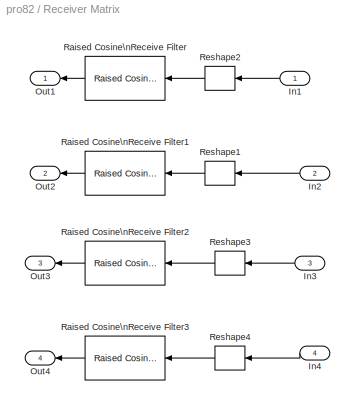
BLOCK [SubSystem] Receiver Matrix
  FunctionWithSeparateData = off
  MaskHideContents = off
  MinAlgLoopOccurrences = off
  Opaque = off
  Ports = [4, 4]
  PropExecContextOutsideSubsystem = off
  RTWSystemCode = Auto
  RequestExecContextInheritance = off
  SID = 99
BLOCK [Inport] Receiver Matrix/In1
  IconDisplay = Port number
  SID = 100
BLOCK [Inport] Receiver Matrix/In2
  IconDisplay = Port number
  Port = 2
  SID = 101
BLOCK [Inport] Receiver Matrix/In3
  IconDisplay = Port number
  Port = 3
  SID = 102
BLOCK [Inport] Receiver Matrix/In4
  IconDisplay = Port number
  Port = 4
  SID = 103
BLOCK [Outport] Receiver Matrix/Out1
  IconDisplay = Port number
  SID = 108
BLOCK [Outport] Receiver Matrix/Out2
  IconDisplay = Port number
  Port = 2
  SID = 109
BLOCK [Outport] Receiver Matrix/Out3
  IconDisplay = Port number
  Port = 3
  SID = 110
BLOCK [Outport] Receiver Matrix/Out4
  IconDisplay = Port number
  Port = 4
  SID = 111
BLOCK [Reference] Receiver Matrix/Raised Cosine\nReceive Filter  REF=commfilt2/Raised Cosine\nReceive Filter
  D = 4
  DialogController = dspDDGCreate
  DialogControllerArgs = DataTag7
  FunctionWithSeparateData = off
  LockScale = off
  N = 8
  Ports = [1, 1]
  R = 0.3
  RTWMemSecDataConstants = Inherit from model
  RTWMemSecDataInternal = Inherit from model
  RTWMemSecDataParameters = Inherit from model
  RTWMemSecFuncExecute = Inherit from model
  RTWMemSecFuncInitTerm = Inherit from model
  SID = 151
  ShowPortLabels = FromPortIcon
  SourceBlock = commfilt2/Raised Cosine\nReceive Filter
  SourceType = Raised Cosine Receive Filter
  SystemSampleTime = -1
  accumFracLength = 30
  accumMode = Same as product output
  accumWordLength = 32
  checkCoeff = off
  checkGain = Normalized
  coeffFracLength = 15
  coeffMode = Same word length as input
  coeffWordLength = 16
  downFactor = 8
  downOffset = 0
  filtType = Square root
  filterGain = 1
  framing = Maintain input frame size
  launchFVT = off
  outputFracLength = 15
  outputMode = Same as accumulator
  outputWordLength = 16
  overflowMode = off
  prodOutputFracLength = 30
  prodOutputMode = Same as input
  prodOutputWordLength = 32
  rateMode = Downsampling
  roundingMode = Floor
  sampMode = Mute
  saveAsFlag = 0
  variableName = rcRxFilt
BLOCK [Reference] Receiver Matrix/Raised Cosine\nReceive Filter1  REF=commfilt2/Raised Cosine\nReceive Filter
  D = 4
  DialogController = dspDDGCreate
  DialogControllerArgs = DataTag8
  FunctionWithSeparateData = off
  LockScale = off
  N = 8
  Ports = [1, 1]
  R = 0.3
  RTWMemSecDataConstants = Inherit from model
  RTWMemSecDataInternal = Inherit from model
  RTWMemSecDataParameters = Inherit from model
  RTWMemSecFuncExecute = Inherit from model
  RTWMemSecFuncInitTerm = Inherit from model
  SID = 152
  ShowPortLabels = FromPortIcon
  SourceBlock = commfilt2/Raised Cosine\nReceive Filter
  SourceType = Raised Cosine Receive Filter
  SystemSampleTime = -1
  accumFracLength = 30
  accumMode = Same as product output
  accumWordLength = 32
  checkCoeff = off
  checkGain = Normalized
  coeffFracLength = 15
  coeffMode = Same word length as input
  coeffWordLength = 16
  downFactor = 8
  downOffset = 0
  filtType = Square root
  filterGain = 1
  framing = Maintain input frame size
  launchFVT = off
  outputFracLength = 15
  outputMode = Same as accumulator
  outputWordLength = 16
  overflowMode = off
  prodOutputFracLength = 30
  prodOutputMode = Same as input
  prodOutputWordLength = 32
  rateMode = Downsampling
  roundingMode = Floor
  sampMode = Mute
  saveAsFlag = 0
  variableName = rcRxFilt1
BLOCK [Reference] Receiver Matrix/Raised Cosine\nReceive Filter2  REF=commfilt2/Raised Cosine\nReceive Filter
  D = 4
  DialogController = dspDDGCreate
  DialogControllerArgs = DataTag9
  FunctionWithSeparateData = off
  LockScale = off
  N = 8
  Ports = [1, 1]
  R = 0.3
  RTWMemSecDataConstants = Inherit from model
  RTWMemSecDataInternal = Inherit from model
  RTWMemSecDataParameters = Inherit from model
  RTWMemSecFuncExecute = Inherit from model
  RTWMemSecFuncInitTerm = Inherit from model
  SID = 153
  ShowPortLabels = FromPortIcon
  SourceBlock = commfilt2/Raised Cosine\nReceive Filter
  SourceType = Raised Cosine Receive Filter
  SystemSampleTime = -1
  accumFracLength = 30
  accumMode = Same as product output
  accumWordLength = 32
  checkCoeff = off
  checkGain = Normalized
  coeffFracLength = 15
  coeffMode = Same word length as input
  coeffWordLength = 16
  downFactor = 8
  downOffset = 0
  filtType = Square root
  filterGain = 1
  framing = Maintain input frame size
  launchFVT = off
  outputFracLength = 15
  outputMode = Same as accumulator
  outputWordLength = 16
  overflowMode = off
  prodOutputFracLength = 30
  prodOutputMode = Same as input
  prodOutputWordLength = 32
  rateMode = Downsampling
  roundingMode = Floor
  sampMode = Mute
  saveAsFlag = 0
  variableName = rcRxFilt2
BLOCK [Reference] Receiver Matrix/Raised Cosine\nReceive Filter3  REF=commfilt2/Raised Cosine\nReceive Filter
  D = 4
  DialogController = dspDDGCreate
  DialogControllerArgs = DataTag10
  FunctionWithSeparateData = off
  LockScale = off
  N = 8
  Ports = [1, 1]
  R = 0.3
  RTWMemSecDataConstants = Inherit from model
  RTWMemSecDataInternal = Inherit from model
  RTWMemSecDataParameters = Inherit from model
  RTWMemSecFuncExecute = Inherit from model
  RTWMemSecFuncInitTerm = Inherit from model
  SID = 154
  ShowPortLabels = FromPortIcon
  SourceBlock = commfilt2/Raised Cosine\nReceive Filter
  SourceType = Raised Cosine Receive Filter
  SystemSampleTime = -1
  accumFracLength = 30
  accumMode = Same as product output
  accumWordLength = 32
  checkCoeff = off
  checkGain = Normalized
  coeffFracLength = 15
  coeffMode = Same word length as input
  coeffWordLength = 16
  downFactor = 8
  downOffset = 0
  filtType = Square root
  filterGain = 1
  framing = Maintain input frame size
  launchFVT = off
  outputFracLength = 15
  outputMode = Same as accumulator
  outputWordLength = 16
  overflowMode = off
  prodOutputFracLength = 30
  prodOutputMode = Same as input
  prodOutputWordLength = 32
  rateMode = Downsampling
  roundingMode = Floor
  sampMode = Mute
  saveAsFlag = 0
  variableName = rcRxFilt3
BLOCK [Reshape] Receiver Matrix/Reshape1
  OutputDimensionality = Row vector (2-D)
  OutputDimensions = [100,4]
  Ports = [1, 1]
  SID = 104
BLOCK [Reshape] Receiver Matrix/Reshape2
  OutputDimensionality = Row vector (2-D)
  OutputDimensions = [100,4]
  Ports = [1, 1]
  SID = 105
BLOCK [Reshape] Receiver Matrix/Reshape3
  OutputDimensionality = Row vector (2-D)
  OutputDimensions = [100,4]
  Ports = [1, 1]
  SID = 106
BLOCK [Reshape] Receiver Matrix/Reshape4
  OutputDimensionality = Row vector (2-D)
  OutputDimensions = [100,4]
  Ports = [1, 1]
  SID = 107
BLOCK [SubSystem] Seperate pilot
  FunctionWithSeparateData = off
  MaskHideContents = off
  MinAlgLoopOccurrences = off
  Opaque = off
  Ports = [1, 2]
  PropExecContextOutsideSubsystem = off
  RTWSystemCode = Auto
  RequestExecContextInheritance = off
  SID = 112
BLOCK [Inport] Seperate pilot/In1
  IconDisplay = Port number
  SID = 113
BLOCK [Reference] Seperate pilot/Multiport\nSelector  REF=dspindex/Multiport\nSelector
  Ports = [1, 2]
  SID = 114
  SourceBlock = dspindex/Multiport\nSelector
  SourceType = Multiport Selector
  idxCellArray = {[1:96],[97:100]}
  idxErrMode = Clip Index
  rowsOrCols = Columns
BLOCK [Outport] Seperate pilot/Out1
  IconDisplay = Port number
  SID = 115
BLOCK [Outport] Seperate pilot/Out2
  IconDisplay = Port number
  Port = 2
  SID = 116
BLOCK [SubSystem] Subsystem
  FunctionWithSeparateData = off
  MaskHideContents = off
  MinAlgLoopOccurrences = off
  Opaque = off
  Ports = [2, 1]
  PropExecContextOutsideSubsystem = off
  RTWSystemCode = Auto
  RequestExecContextInheritance = off
  SID = 117
BLOCK [FrameConversion] Subsystem/Frame Conversion
  Ports = [1, 1]
  SID = 120
BLOCK [Inport] Subsystem/In1
  IconDisplay = Port number
  SID = 118
BLOCK [Inport] Subsystem/In2
  IconDisplay = Port number
  Port = 2
  SID = 119
BLOCK [Outport] Subsystem/Out1
  IconDisplay = Port number
  SID = 124
BLOCK [Product] Subsystem/Product
  InputSameDT = off
  Multiplication = Matrix(*)
  OutDataType = fixdt(1, 16)
  OutDataTypeMode = Inherit via internal rule
  OutDataTypeStr = Inherit: Inherit via internal rule
  OutScaling = 2^0
  Ports = [2, 1]
  SID = 121
  SaturateOnIntegerOverflow = off
BLOCK [Reference] Subsystem/Pseudoinverse  REF=dspinverses/Pseudoinverse
  Ports = [1, 1]
  SID = 122
  SourceBlock = dspinverses/Pseudoinverse
  SourceType = Pseudoinverse
  wanterr = off
BLOCK [Reshape] Subsystem/Reshape
  OutputDimensionality = Column vector (2-D)
  OutputDimensions = [4,96]
  Ports = [1, 1]
  SID = 123
BLOCK [Sum] Sum
  IconShape = round
  InputSameDT = off
  Inputs = +-
  OutDataType = fixdt(1, 16)
  OutDataTypeMode = Inherit via internal rule
  OutDataTypeStr = Inherit: Inherit via internal rule
  OutScaling = 2^0
  Ports = [2, 1]
  SID = 125
  SaturateOnIntegerOverflow = off
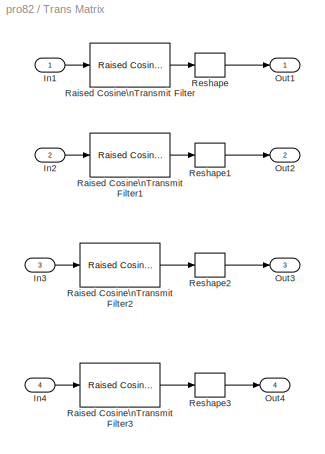
BLOCK [SubSystem] Trans Matrix
  FunctionWithSeparateData = off
  MaskHideContents = off
  MinAlgLoopOccurrences = off
  Opaque = off
  Ports = [4, 4]
  PropExecContextOutsideSubsystem = off
  RTWSystemCode = Auto
  RequestExecContextInheritance = off
  SID = 126
BLOCK [Inport] Trans Matrix/In1
  IconDisplay = Port number
  SID = 127
BLOCK [Inport] Trans Matrix/In2
  IconDisplay = Port number
  Port = 2
  SID = 128
BLOCK [Inport] Trans Matrix/In3
  IconDisplay = Port number
  Port = 3
  SID = 129
BLOCK [Inport] Trans Matrix/In4
  IconDisplay = Port number
  Port = 4
  SID = 130
BLOCK [Outport] Trans Matrix/Out1
  IconDisplay = Port number
  SID = 135
BLOCK [Outport] Trans Matrix/Out2
  IconDisplay = Port number
  Port = 2
  SID = 136
BLOCK [Outport] Trans Matrix/Out3
  IconDisplay = Port number
  Port = 3
  SID = 137
BLOCK [Outport] Trans Matrix/Out4
  IconDisplay = Port number
  Port = 4
  SID = 138
BLOCK [Reference] Trans Matrix/Raised Cosine\nTransmit Filter  REF=commfilt2/Raised Cosine\nTransmit Filter
  D = 4
  DialogController = dspDDGCreate
  DialogControllerArgs = DataTag11
  FunctionWithSeparateData = off
  LockScale = off
  N = 8
  Ports = [1, 1]
  R = 0.3
  RTWMemSecDataConstants = Inherit from model
  RTWMemSecDataInternal = Inherit from model
  RTWMemSecDataParameters = Inherit from model
  RTWMemSecFuncExecute = Inherit from model
  RTWMemSecFuncInitTerm = Inherit from model
  SID = 147
  ShowPortLabels = FromPortIcon
  SourceBlock = commfilt2/Raised Cosine\nTransmit Filter
  SourceType = Raised Cosine Transmit Filter
  SystemSampleTime = -1
  accumFracLength = 30
  accumMode = Inherit via internal rule
  accumWordLength = 32
  checkCoeff = off
  checkGain = Normalized
  coeffFracLength = 15
  coeffMode = Same word length as input
  coeffWordLength = 16
  filtType = Square root
  filterGain = 1
  framing = Maintain input frame size
  launchFVT = off
  outputFracLength = 15
  outputMode = Same as accumulator
  outputWordLength = 16
  overflowMode = off
  prodOutputFracLength = 30
  prodOutputMode = Inherit via internal rule
  prodOutputWordLength = 32
  roundingMode = Floor
  sampMode = Mute
  saveAsFlag = 0
  variableName = rcTxFilt
BLOCK [Reference] Trans Matrix/Raised Cosine\nTransmit Filter1  REF=commfilt2/Raised Cosine\nTransmit Filter
  D = 4
  DialogController = dspDDGCreate
  DialogControllerArgs = DataTag12
  FunctionWithSeparateData = off
  LockScale = off
  N = 8
  Ports = [1, 1]
  R = 0.2
  RTWMemSecDataConstants = Inherit from model
  RTWMemSecDataInternal = Inherit from model
  RTWMemSecDataParameters = Inherit from model
  RTWMemSecFuncExecute = Inherit from model
  RTWMemSecFuncInitTerm = Inherit from model
  SID = 148
  ShowPortLabels = FromPortIcon
  SourceBlock = commfilt2/Raised Cosine\nTransmit Filter
  SourceType = Raised Cosine Transmit Filter
  SystemSampleTime = -1
  accumFracLength = 30
  accumMode = Inherit via internal rule
  accumWordLength = 32
  checkCoeff = off
  checkGain = Normalized
  coeffFracLength = 15
  coeffMode = Same word length as input
  coeffWordLength = 16
  filtType = Square root
  filterGain = 1
  framing = Maintain input frame size
  launchFVT = off
  outputFracLength = 15
  outputMode = Same as accumulator
  outputWordLength = 16
  overflowMode = off
  prodOutputFracLength = 30
  prodOutputMode = Inherit via internal rule
  prodOutputWordLength = 32
  roundingMode = Floor
  sampMode = Mute
  saveAsFlag = 0
  variableName = rcTxFilt1
BLOCK [Reference] Trans Matrix/Raised Cosine\nTransmit Filter2  REF=commfilt2/Raised Cosine\nTransmit Filter
  D = 4
  DialogController = dspDDGCreate
  DialogControllerArgs = DataTag13
  FunctionWithSeparateData = off
  LockScale = off
  N = 8
  Ports = [1, 1]
  R = 0.2
  RTWMemSecDataConstants = Inherit from model
  RTWMemSecDataInternal = Inherit from model
  RTWMemSecDataParameters = Inherit from model
  RTWMemSecFuncExecute = Inherit from model
  RTWMemSecFuncInitTerm = Inherit from model
  SID = 149
  ShowPortLabels = FromPortIcon
  SourceBlock = commfilt2/Raised Cosine\nTransmit Filter
  SourceType = Raised Cosine Transmit Filter
  SystemSampleTime = -1
  accumFracLength = 30
  accumMode = Inherit via internal rule
  accumWordLength = 32
  checkCoeff = off
  checkGain = Normalized
  coeffFracLength = 15
  coeffMode = Same word length as input
  coeffWordLength = 16
  filtType = Square root
  filterGain = 1
  framing = Maintain input frame size
  launchFVT = off
  outputFracLength = 15
  outputMode = Same as accumulator
  outputWordLength = 16
  overflowMode = off
  prodOutputFracLength = 30
  prodOutputMode = Inherit via internal rule
  prodOutputWordLength = 32
  roundingMode = Floor
  sampMode = Mute
  saveAsFlag = 0
  variableName = rcTxFilt2
BLOCK [Reference] Trans Matrix/Raised Cosine\nTransmit Filter3  REF=commfilt2/Raised Cosine\nTransmit Filter
  D = 4
  DialogController = dspDDGCreate
  DialogControllerArgs = DataTag14
  FunctionWithSeparateData = off
  LockScale = off
  N = 8
  Ports = [1, 1]
  R = 0.2
  RTWMemSecDataConstants = Inherit from model
  RTWMemSecDataInternal = Inherit from model
  RTWMemSecDataParameters = Inherit from model
  RTWMemSecFuncExecute = Inherit from model
  RTWMemSecFuncInitTerm = Inherit from model
  SID = 150
  ShowPortLabels = FromPortIcon
  SourceBlock = commfilt2/Raised Cosine\nTransmit Filter
  SourceType = Raised Cosine Transmit Filter
  SystemSampleTime = -1
  accumFracLength = 30
  accumMode = Inherit via internal rule
  accumWordLength = 32
  checkCoeff = off
  checkGain = Normalized
  coeffFracLength = 15
  coeffMode = Same word length as input
  coeffWordLength = 16
  filtType = Square root
  filterGain = 1
  framing = Maintain input frame size
  launchFVT = off
  outputFracLength = 15
  outputMode = Same as accumulator
  outputWordLength = 16
  overflowMode = off
  prodOutputFracLength = 30
  prodOutputMode = Inherit via internal rule
  prodOutputWordLength = 32
  roundingMode = Floor
  sampMode = Mute
  saveAsFlag = 0
  variableName = rcTxFilt3
BLOCK [Reshape] Trans Matrix/Reshape
  OutputDimensionality = Column vector (2-D)
  OutputDimensions = [100,4]
  Ports = [1, 1]
  SID = 131
BLOCK [Reshape] Trans Matrix/Reshape1
  OutputDimensionality = Column vector (2-D)
  OutputDimensions = [100,4]
  Ports = [1, 1]
  SID = 132
BLOCK [Reshape] Trans Matrix/Reshape2
  OutputDimensionality = Column vector (2-D)
  OutputDimensions = [100,4]
  Ports = [1, 1]
  SID = 133
BLOCK [Reshape] Trans Matrix/Reshape3
  OutputDimensionality = Column vector (2-D)
  OutputDimensions = [100,4]
  Ports = [1, 1]
  SID = 134
BLOCK [SubSystem] ZF Estimate
  FunctionWithSeparateData = off
  MaskHideContents = off
  MinAlgLoopOccurrences = off
  Opaque = off
  Ports = [1, 1]
  PropExecContextOutsideSubsystem = off
  RTWSystemCode = Auto
  RequestExecContextInheritance = off
  SID = 139
BLOCK [Constant] ZF Estimate/Constant
  OutDataType = fixdt(1, 16)
  OutScaling = 2^0
  SID = 141
  SampleTime = 1e-4
  Value = [1 0 0 0;0 1 0 0;0 0 1 0;0 0 0 1]
BLOCK [Inport] ZF Estimate/In1
  IconDisplay = Port number
  SID = 140
BLOCK [Outport] ZF Estimate/Out1
  IconDisplay = Port number
  SID = 144
BLOCK [Product] ZF Estimate/Product2
  InputSameDT = off
  Multiplication = Matrix(*)
  OutDataType = fixdt(1, 16)
  OutDataTypeMode = Inherit via internal rule
  OutDataTypeStr = Inherit: Inherit via internal rule
  OutScaling = 2^0
  Ports = [2, 1]
  SID = 142
  SaturateOnIntegerOverflow = off
BLOCK [Reference] ZF Estimate/Pseudoinverse  REF=dspinverses/Pseudoinverse
  Ports = [1, 1]
  SID = 143
  SourceBlock = dspinverses/Pseudoinverse
  SourceType = Pseudoinverse
  wanterr = off
LINE 1:4 Demux/In1:1 -> 1:4 Demux/Multiport\nSelector:1
LINE 1:4 Demux/Multiport\nSelector:1 -> 1:4 Demux/Out1:1
LINE 1:4 Demux/Multiport\nSelector:2 -> 1:4 Demux/Out2:1
LINE 1:4 Demux/Multiport\nSelector:3 -> 1:4 Demux/Out3:1
LINE 1:4 Demux/Multiport\nSelector:4 -> 1:4 Demux/Out4:1
LINE 1:4 Demux:1 -> Trans Matrix:1
LINE 1:4 Demux:2 -> Trans Matrix:2
LINE 1:4 Demux:3 -> Trans Matrix:3
LINE 1:4 Demux:4 -> Trans Matrix:4
LINE Add pilot/Constant:1 -> Add pilot/Matrix\nConcatenate:2
LINE Add pilot/In1:1 -> Add pilot/Reshape:1
LINE Add pilot/Matrix\nConcatenate:1 -> Add pilot/Out1:1
LINE Add pilot/Reshape:1 -> Add pilot/Matrix\nConcatenate:1
LINE Add pilot:1 -> 1:4 Demux:1
NET Bernoulli Binary\nGenerator:1 -> Display4:1, Error Rate\nCalculation:1, M-PSK\nModulator\nBaseband:1
NET Channal Matrix/In1:1 -> Channal Matrix/ToR1:1, Channal Matrix/ToR2:1, Channal Matrix/ToR3:1, Channal Matrix/ToR4:1
NET Channal Matrix/In2:1 -> Channal Matrix/ToR1:2, Channal Matrix/ToR2:2, Channal Matrix/ToR3:2, Channal Matrix/ToR4:2
NET Channal Matrix/In3:1 -> Channal Matrix/ToR1:3, Channal Matrix/ToR2:3, Channal Matrix/ToR3:3, Channal Matrix/ToR4:3
NET Channal Matrix/In4:1 -> Channal Matrix/ToR1:4, Channal Matrix/ToR2:4, Channal Matrix/ToR3:4, Channal Matrix/ToR4:4
LINE Channal Matrix/Matrix\nConcatenate:1 -> Channal Matrix/H:1
LINE Channal Matrix/ToR1/AWGN\nChannel:1 -> Channal Matrix/ToR1/Out1:1
LINE Channal Matrix/ToR1/Add:1 -> Channal Matrix/ToR1/AWGN\nChannel:1
LINE Channal Matrix/ToR1/In1:1 -> Channal Matrix/ToR1/Multipath Rayleigh\nFading Channel:1
LINE Channal Matrix/ToR1/In2:1 -> Channal Matrix/ToR1/Multipath Rayleigh\nFading Channel1:1
LINE Channal Matrix/ToR1/In3:1 -> Channal Matrix/ToR1/Multipath Rayleigh\nFading Channel2:1
LINE Channal Matrix/ToR1/In4:1 -> Channal Matrix/ToR1/Multipath Rayleigh\nFading Channel3:1
LINE Channal Matrix/ToR1/Matrix\nConcatenate:1 -> Channal Matrix/ToR1/Mean:1
LINE Channal Matrix/ToR1/Mean:1 -> Channal Matrix/ToR1/HR1:1
LINE Channal Matrix/ToR1/Multipath Rayleigh\nFading Channel1:1 -> Channal Matrix/ToR1/Add:2
LINE Channal Matrix/ToR1/Multipath Rayleigh\nFading Channel1:2 -> Channal Matrix/ToR1/Matrix\nConcatenate:2
LINE Channal Matrix/ToR1/Multipath Rayleigh\nFading Channel2:1 -> Channal Matrix/ToR1/Add:3
LINE Channal Matrix/ToR1/Multipath Rayleigh\nFading Channel2:2 -> Channal Matrix/ToR1/Matrix\nConcatenate:3
LINE Channal Matrix/ToR1/Multipath Rayleigh\nFading Channel3:1 -> Channal Matrix/ToR1/Add:4
LINE Channal Matrix/ToR1/Multipath Rayleigh\nFading Channel3:2 -> Channal Matrix/ToR1/Matrix\nConcatenate:4
LINE Channal Matrix/ToR1/Multipath Rayleigh\nFading Channel:1 -> Channal Matrix/ToR1/Add:1
LINE Channal Matrix/ToR1/Multipath Rayleigh\nFading Channel:2 -> Channal Matrix/ToR1/Matrix\nConcatenate:1
LINE Channal Matrix/ToR1:1 -> Channal Matrix/R1:1
LINE Channal Matrix/ToR1:2 -> Channal Matrix/Matrix\nConcatenate:1
LINE Channal Matrix/ToR2/AWGN\nChannel:1 -> Channal Matrix/ToR2/Out1:1
LINE Channal Matrix/ToR2/Add:1 -> Channal Matrix/ToR2/AWGN\nChannel:1
LINE Channal Matrix/ToR2/In1:1 -> Channal Matrix/ToR2/Multipath Rayleigh\nFading Channel:1
LINE Channal Matrix/ToR2/In2:1 -> Channal Matrix/ToR2/Multipath Rayleigh\nFading Channel1:1
LINE Channal Matrix/ToR2/In3:1 -> Channal Matrix/ToR2/Multipath Rayleigh\nFading Channel2:1
LINE Channal Matrix/ToR2/In4:1 -> Channal Matrix/ToR2/Multipath Rayleigh\nFading Channel3:1
LINE Channal Matrix/ToR2/Matrix\nConcatenate:1 -> Channal Matrix/ToR2/Mean:1
LINE Channal Matrix/ToR2/Mean:1 -> Channal Matrix/ToR2/HR2:1
LINE Channal Matrix/ToR2/Multipath Rayleigh\nFading Channel1:1 -> Channal Matrix/ToR2/Add:2
LINE Channal Matrix/ToR2/Multipath Rayleigh\nFading Channel1:2 -> Channal Matrix/ToR2/Matrix\nConcatenate:2
LINE Channal Matrix/ToR2/Multipath Rayleigh\nFading Channel2:1 -> Channal Matrix/ToR2/Add:3
LINE Channal Matrix/ToR2/Multipath Rayleigh\nFading Channel2:2 -> Channal Matrix/ToR2/Matrix\nConcatenate:3
LINE Channal Matrix/ToR2/Multipath Rayleigh\nFading Channel3:1 -> Channal Matrix/ToR2/Add:4
LINE Channal Matrix/ToR2/Multipath Rayleigh\nFading Channel3:2 -> Channal Matrix/ToR2/Matrix\nConcatenate:4
LINE Channal Matrix/ToR2/Multipath Rayleigh\nFading Channel:1 -> Channal Matrix/ToR2/Add:1
LINE Channal Matrix/ToR2/Multipath Rayleigh\nFading Channel:2 -> Channal Matrix/ToR2/Matrix\nConcatenate:1
LINE Channal Matrix/ToR2:1 -> Channal Matrix/R2:1
LINE Channal Matrix/ToR2:2 -> Channal Matrix/Matrix\nConcatenate:2
LINE Channal Matrix/ToR3/AWGN\nChannel:1 -> Channal Matrix/ToR3/Out1:1
LINE Channal Matrix/ToR3/Add:1 -> Channal Matrix/ToR3/AWGN\nChannel:1
LINE Channal Matrix/ToR3/In1:1 -> Channal Matrix/ToR3/Multipath Rayleigh\nFading Channel:1
LINE Channal Matrix/ToR3/In2:1 -> Channal Matrix/ToR3/Multipath Rayleigh\nFading Channel1:1
LINE Channal Matrix/ToR3/In3:1 -> Channal Matrix/ToR3/Multipath Rayleigh\nFading Channel2:1
LINE Channal Matrix/ToR3/In4:1 -> Channal Matrix/ToR3/Multipath Rayleigh\nFading Channel3:1
LINE Channal Matrix/ToR3/Matrix\nConcatenate:1 -> Channal Matrix/ToR3/Mean:1
LINE Channal Matrix/ToR3/Mean:1 -> Channal Matrix/ToR3/HR3:1
LINE Channal Matrix/ToR3/Multipath Rayleigh\nFading Channel1:1 -> Channal Matrix/ToR3/Add:2
LINE Channal Matrix/ToR3/Multipath Rayleigh\nFading Channel1:2 -> Channal Matrix/ToR3/Matrix\nConcatenate:2
LINE Channal Matrix/ToR3/Multipath Rayleigh\nFading Channel2:1 -> Channal Matrix/ToR3/Add:3
LINE Channal Matrix/ToR3/Multipath Rayleigh\nFading Channel2:2 -> Channal Matrix/ToR3/Matrix\nConcatenate:3
LINE Channal Matrix/ToR3/Multipath Rayleigh\nFading Channel3:1 -> Channal Matrix/ToR3/Add:4
LINE Channal Matrix/ToR3/Multipath Rayleigh\nFading Channel3:2 -> Channal Matrix/ToR3/Matrix\nConcatenate:4
LINE Channal Matrix/ToR3/Multipath Rayleigh\nFading Channel:1 -> Channal Matrix/ToR3/Add:1
LINE Channal Matrix/ToR3/Multipath Rayleigh\nFading Channel:2 -> Channal Matrix/ToR3/Matrix\nConcatenate:1
LINE Channal Matrix/ToR3:1 -> Channal Matrix/R3:1
LINE Channal Matrix/ToR3:2 -> Channal Matrix/Matrix\nConcatenate:3
LINE Channal Matrix/ToR4/AWGN\nChannel:1 -> Channal Matrix/ToR4/Out1:1
LINE Channal Matrix/ToR4/Add:1 -> Channal Matrix/ToR4/AWGN\nChannel:1
LINE Channal Matrix/ToR4/In1:1 -> Channal Matrix/ToR4/Multipath Rayleigh\nFading Channel:1
LINE Channal Matrix/ToR4/In2:1 -> Channal Matrix/ToR4/Multipath Rayleigh\nFading Channel1:1
LINE Channal Matrix/ToR4/In3:1 -> Channal Matrix/ToR4/Multipath Rayleigh\nFading Channel2:1
LINE Channal Matrix/ToR4/In4:1 -> Channal Matrix/ToR4/Multipath Rayleigh\nFading Channel3:1
LINE Channal Matrix/ToR4/Matrix\nConcatenate:1 -> Channal Matrix/ToR4/Mean:1
LINE Channal Matrix/ToR4/Mean:1 -> Channal Matrix/ToR4/HR4:1
LINE Channal Matrix/ToR4/Multipath Rayleigh\nFading Channel1:1 -> Channal Matrix/ToR4/Add:2
LINE Channal Matrix/ToR4/Multipath Rayleigh\nFading Channel1:2 -> Channal Matrix/ToR4/Matrix\nConcatenate:2
LINE Channal Matrix/ToR4/Multipath Rayleigh\nFading Channel2:1 -> Channal Matrix/ToR4/Add:3
LINE Channal Matrix/ToR4/Multipath Rayleigh\nFading Channel2:2 -> Channal Matrix/ToR4/Matrix\nConcatenate:3
LINE Channal Matrix/ToR4/Multipath Rayleigh\nFading Channel3:1 -> Channal Matrix/ToR4/Add:4
LINE Channal Matrix/ToR4/Multipath Rayleigh\nFading Channel3:2 -> Channal Matrix/ToR4/Matrix\nConcatenate:4
LINE Channal Matrix/ToR4/Multipath Rayleigh\nFading Channel:1 -> Channal Matrix/ToR4/Add:1
LINE Channal Matrix/ToR4/Multipath Rayleigh\nFading Channel:2 -> Channal Matrix/ToR4/Matrix\nConcatenate:1
LINE Channal Matrix/ToR4:1 -> Channal Matrix/R4:1
LINE Channal Matrix/ToR4:2 -> Channal Matrix/Matrix\nConcatenate:4
LINE Channal Matrix:1 -> Receiver Matrix:1
LINE Channal Matrix:2 -> Receiver Matrix:2
LINE Channal Matrix:3 -> Receiver Matrix:3
LINE Channal Matrix:4 -> Receiver Matrix:4
LINE Channal Matrix:5 -> Sum:1
LINE Error Rate\nCalculation:1 -> Display1:1
NET M-PSK\nDemodulator\nBaseband:1 -> Display3:1, Error Rate\nCalculation:2
LINE M-PSK\nModulator\nBaseband:1 -> Add pilot:1
LINE Math\nFunction:1 -> Display2:1
LINE Mux/In1:1 -> Mux/Matrix\nConcatenate:1
LINE Mux/In2:1 -> Mux/Matrix\nConcatenate:2
LINE Mux/In3:1 -> Mux/Matrix\nConcatenate:3
LINE Mux/In4:1 -> Mux/Matrix\nConcatenate:4
LINE Mux/Matrix\nConcatenate:1 -> Mux/Out1:1
LINE Mux:1 -> Seperate pilot:1
LINE Receiver Matrix/In1:1 -> Receiver Matrix/Reshape2:1
LINE Receiver Matrix/In2:1 -> Receiver Matrix/Reshape1:1
LINE Receiver Matrix/In3:1 -> Receiver Matrix/Reshape3:1
LINE Receiver Matrix/In4:1 -> Receiver Matrix/Reshape4:1
LINE Receiver Matrix/Raised Cosine\nReceive Filter1:1 -> Receiver Matrix/Out2:1
LINE Receiver Matrix/Raised Cosine\nReceive Filter2:1 -> Receiver Matrix/Out3:1
LINE Receiver Matrix/Raised Cosine\nReceive Filter3:1 -> Receiver Matrix/Out4:1
LINE Receiver Matrix/Raised Cosine\nReceive Filter:1 -> Receiver Matrix/Out1:1
LINE Receiver Matrix/Reshape1:1 -> Receiver Matrix/Raised Cosine\nReceive Filter1:1
LINE Receiver Matrix/Reshape2:1 -> Receiver Matrix/Raised Cosine\nReceive Filter:1
LINE Receiver Matrix/Reshape3:1 -> Receiver Matrix/Raised Cosine\nReceive Filter2:1
LINE Receiver Matrix/Reshape4:1 -> Receiver Matrix/Raised Cosine\nReceive Filter3:1
LINE Receiver Matrix:1 -> Mux:1
LINE Receiver Matrix:2 -> Mux:2
LINE Receiver Matrix:3 -> Mux:3
LINE Receiver Matrix:4 -> Mux:4
LINE Seperate pilot/In1:1 -> Seperate pilot/Multiport\nSelector:1
LINE Seperate pilot/Multiport\nSelector:1 -> Seperate pilot/Out1:1
LINE Seperate pilot/Multiport\nSelector:2 -> Seperate pilot/Out2:1
LINE Seperate pilot:1 -> Subsystem:1
LINE Seperate pilot:2 -> ZF Estimate:1
LINE Subsystem/Frame Conversion:1 -> Subsystem/Out1:1
LINE Subsystem/In1:1 -> Subsystem/Product:2
LINE Subsystem/In2:1 -> Subsystem/Pseudoinverse:1
LINE Subsystem/Product:1 -> Subsystem/Reshape:1
LINE Subsystem/Pseudoinverse:1 -> Subsystem/Product:1
LINE Subsystem/Reshape:1 -> Subsystem/Frame Conversion:1
LINE Subsystem:1 -> M-PSK\nDemodulator\nBaseband:1
LINE Sum:1 -> Math\nFunction:1
LINE Trans Matrix/In1:1 -> Trans Matrix/Raised Cosine\nTransmit Filter:1
LINE Trans Matrix/In2:1 -> Trans Matrix/Raised Cosine\nTransmit Filter1:1
LINE Trans Matrix/In3:1 -> Trans Matrix/Raised Cosine\nTransmit Filter2:1
LINE Trans Matrix/In4:1 -> Trans Matrix/Raised Cosine\nTransmit Filter3:1
LINE Trans Matrix/Raised Cosine\nTransmit Filter1:1 -> Trans Matrix/Reshape1:1
LINE Trans Matrix/Raised Cosine\nTransmit Filter2:1 -> Trans Matrix/Reshape2:1
LINE Trans Matrix/Raised Cosine\nTransmit Filter3:1 -> Trans Matrix/Reshape3:1
LINE Trans Matrix/Raised Cosine\nTransmit Filter:1 -> Trans Matrix/Reshape:1
LINE Trans Matrix/Reshape1:1 -> Trans Matrix/Out2:1
LINE Trans Matrix/Reshape2:1 -> Trans Matrix/Out3:1
LINE Trans Matrix/Reshape3:1 -> Trans Matrix/Out4:1
LINE Trans Matrix/Reshape:1 -> Trans Matrix/Out1:1
LINE Trans Matrix:1 -> Channal Matrix:1
LINE Trans Matrix:2 -> Channal Matrix:2
LINE Trans Matrix:3 -> Channal Matrix:3
LINE Trans Matrix:4 -> Channal Matrix:4
LINE ZF Estimate/Constant:1 -> ZF Estimate/Pseudoinverse:1
LINE ZF Estimate/In1:1 -> ZF Estimate/Product2:1
LINE ZF Estimate/Product2:1 -> ZF Estimate/Out1:1
LINE ZF Estimate/Pseudoinverse:1 -> ZF Estimate/Product2:2
NET ZF Estimate:1 -> Subsystem:2, Sum:2
note: NET lines group one-source signal fan-out (src -> all destinations, sorted); 1:1 wires keep LINE
